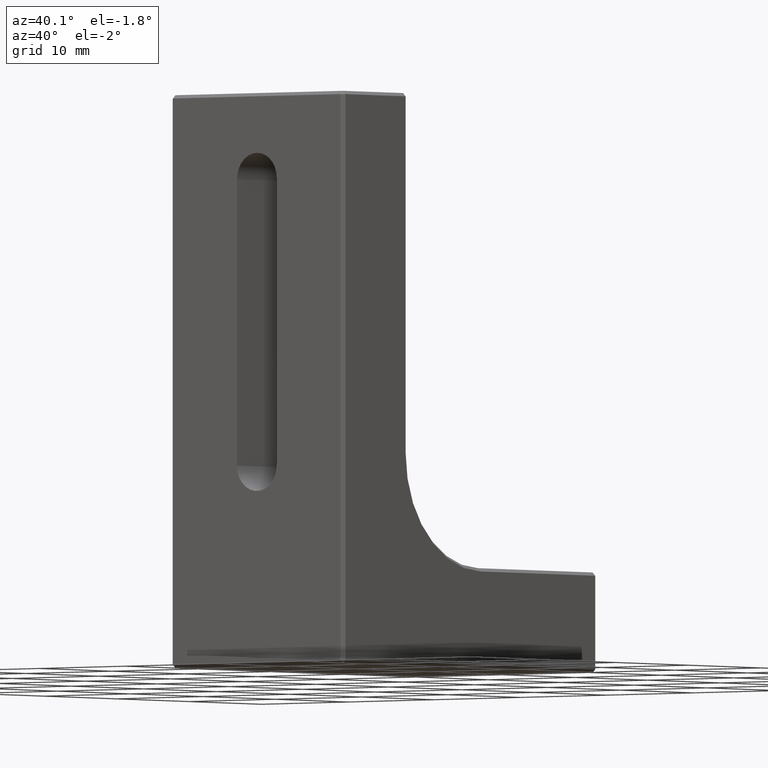
[diagram: clean part render]
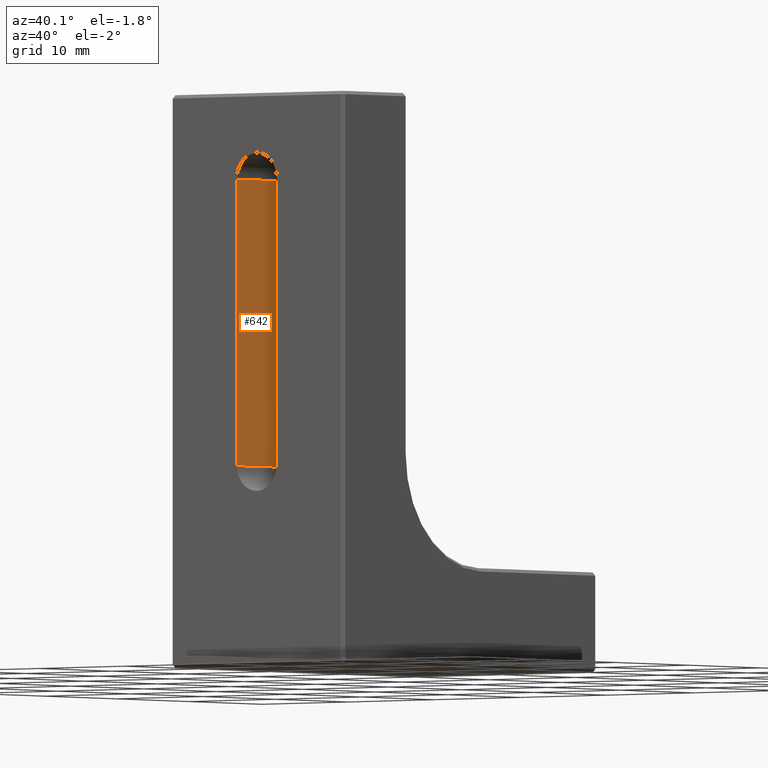
[diagram: same view with one face highlighted and labeled with its STEP entity id]
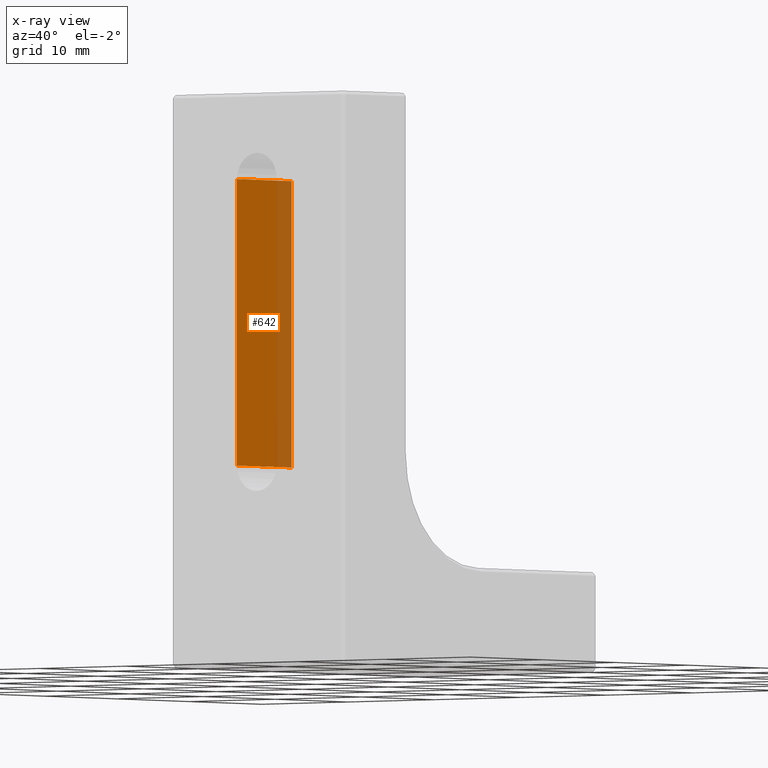
[diagram: x-ray of the same camera — body ghosted, the highlighted face saturated]
A machine part, auxiliary view. The second image highlights one B-rep face of the part: STEP entity #642.
The next image is the same camera in x-ray: the body ghosted, the highlighted face saturated — about 26% of this face is hidden behind the body in this view.
In plain terms, the highlighted planar face has unit normal (-1, 0, 0).
Its self-contained STEP definition (entity closure, byte-faithful):
#42 = CARTESIAN_POINT ( 'NONE',  ( -2.299999999999998934, -6.938893903907228378E-15, 17.78999999999999559 ) ) ;
#111 = VERTEX_POINT ( 'NONE', #1040 ) ;
#117 = DIRECTION ( 'NONE',  ( 1.024442997624098953E-16, 0.000000000000000000, 1.000000000000000000 ) ) ;
#144 = DIRECTION ( 'NONE',  ( -1.024442997624098953E-16, 0.000000000000000000, -1.000000000000000000 ) ) ;
#161 = CARTESIAN_POINT ( 'NONE',  ( -2.299999999999996270, 7.500000000000003553, 43.18999999999999062 ) ) ;
#209 = VECTOR ( 'NONE', #144, 1000.000000000000000 ) ;
#222 = LINE ( 'NONE', #347, #209 ) ;
#235 = CARTESIAN_POINT ( 'NONE',  ( -2.299999999999998934, -6.938893903907228378E-15, 17.78999999999999559 ) ) ;
#279 = CARTESIAN_POINT ( 'NONE',  ( -2.299999999999995826, -5.289249525517417612E-15, 43.18999999999999062 ) ) ;
#286 = DIRECTION ( 'NONE',  ( 1.024442997624098953E-16, 0.000000000000000000, 1.000000000000000000 ) ) ;
#291 = VECTOR ( 'NONE', #1188, 1000.000000000000000 ) ;
#298 = ORIENTED_EDGE ( 'NONE', *, *, #1111, .T. ) ;
#308 = ORIENTED_EDGE ( 'NONE', *, *, #933, .F. ) ;
#347 = CARTESIAN_POINT ( 'NONE',  ( -2.299999999999998934, 7.500000000000003553, 17.78999999999999559 ) ) ;
#367 = VERTEX_POINT ( 'NONE', #279 ) ;
#385 = DIRECTION ( 'NONE',  ( -0.000000000000000000, 1.000000000000000000, -0.000000000000000000 ) ) ;
#400 = EDGE_LOOP ( 'NONE', ( #1386, #903, #308, #298 ) ) ;
#614 = CARTESIAN_POINT ( 'NONE',  ( -2.299999999999996270, -6.938893903907228378E-15, 43.18999999999999062 ) ) ;
#638 = VERTEX_POINT ( 'NONE', #1191 ) ;
#642 = ADVANCED_FACE ( 'NONE', ( #1200 ), #1067, .F. ) ;
#688 = VECTOR ( 'NONE', #385, 1000.000000000000000 ) ;
#722 = EDGE_CURVE ( 'NONE', #901, #638, #222, .T. ) ;
#739 = AXIS2_PLACEMENT_3D ( 'NONE', #235, #853, #117 ) ;
#767 = LINE ( 'NONE', #42, #1270 ) ;
#853 = DIRECTION ( 'NONE',  ( -1.000000000000000000, 0.000000000000000000, 1.024442997624098953E-16 ) ) ;
#901 = VERTEX_POINT ( 'NONE', #161 ) ;
#903 = ORIENTED_EDGE ( 'NONE', *, *, #1482, .F. ) ;
#933 = EDGE_CURVE ( 'NONE', #111, #367, #767, .T. ) ;
#947 = CARTESIAN_POINT ( 'NONE',  ( -2.299999999999998934, -6.938893903907228378E-15, 17.78999999999999559 ) ) ;
#1040 = CARTESIAN_POINT ( 'NONE',  ( -2.299999999999998934, -6.938893903907228378E-15, 17.78999999999999559 ) ) ;
#1067 = PLANE ( 'NONE',  #739 ) ;
#1111 = EDGE_CURVE ( 'NONE', #111, #638, #1431, .T. ) ;
#1188 = DIRECTION ( 'NONE',  ( -0.000000000000000000, 1.000000000000000000, -0.000000000000000000 ) ) ;
#1191 = CARTESIAN_POINT ( 'NONE',  ( -2.299999999999998934, 7.500000000000003553, 17.78999999999999559 ) ) ;
#1200 = FACE_OUTER_BOUND ( 'NONE', #400, .T. ) ;
#1218 = LINE ( 'NONE', #614, #688 ) ;
#1270 = VECTOR ( 'NONE', #286, 1000.000000000000000 ) ;
#1386 = ORIENTED_EDGE ( 'NONE', *, *, #722, .F. ) ;
#1431 = LINE ( 'NONE', #947, #291 ) ;
#1482 = EDGE_CURVE ( 'NONE', #367, #901, #1218, .T. ) ;